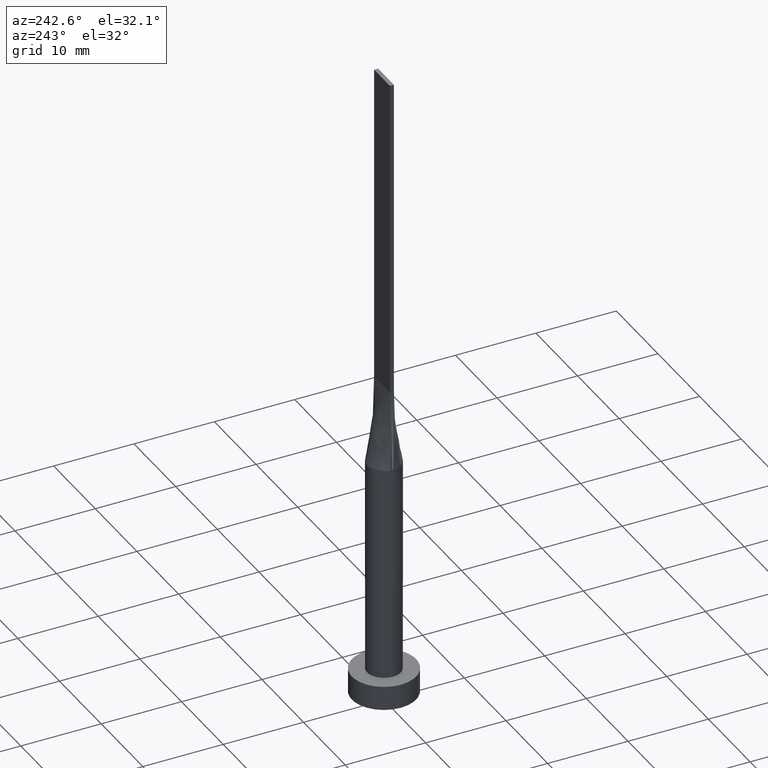
[diagram: clean part render]
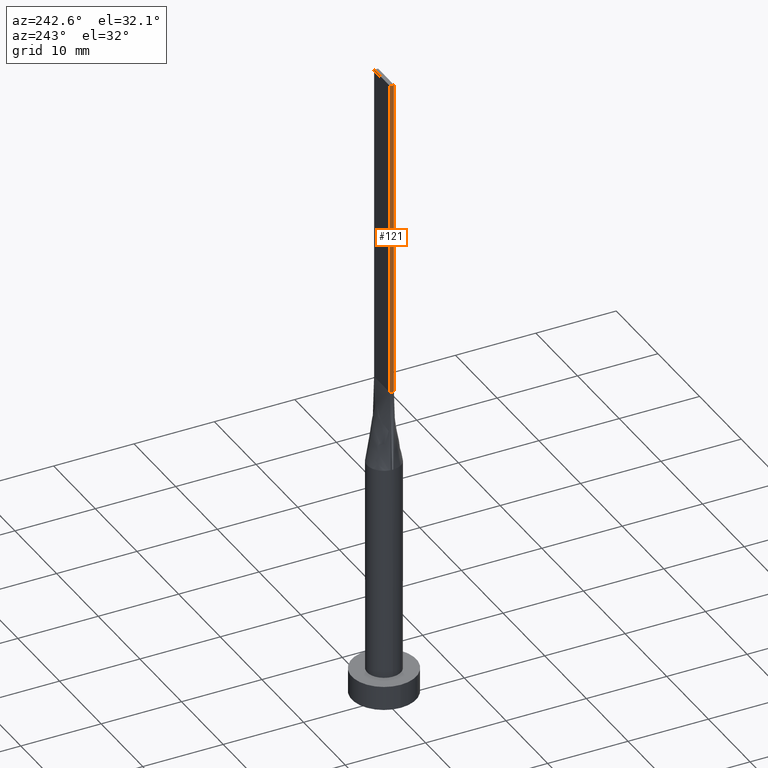
[diagram: same view with one face highlighted and labeled with its STEP entity id]
A machine part, auxiliary view. The second image highlights one B-rep face of the part: STEP entity #121.
In plain terms, the highlighted planar face has unit normal (1, 0, -0).
Its self-contained STEP definition (entity closure, byte-faithful):
#20 = ORIENTED_EDGE ( 'NONE', *, *, #541, .F. ) ;
#34 = LINE ( 'NONE', #492, #415 ) ;
#35 = EDGE_CURVE ( 'NONE', #504, #205, #220, .T. ) ;
#55 = VERTEX_POINT ( 'NONE', #391 ) ;
#77 = CARTESIAN_POINT ( 'NONE',  ( -1.899999999999999911, 0.2500000000000002220, 80.00000000000000000 ) ) ;
#85 = LINE ( 'NONE', #451, #376 ) ;
#103 = VECTOR ( 'NONE', #183, 1000.000000000000000 ) ;
#121 = ADVANCED_FACE ( 'NONE', ( #485 ), #389, .F. ) ;
#183 = DIRECTION ( 'NONE',  ( 0.000000000000000000, -1.000000000000000000, 0.000000000000000000 ) ) ;
#205 = VERTEX_POINT ( 'NONE', #297 ) ;
#220 = LINE ( 'NONE', #579, #103 ) ;
#224 = DIRECTION ( 'NONE',  ( -0.000000000000000000, -0.000000000000000000, -1.000000000000000000 ) ) ;
#256 = DIRECTION ( 'NONE',  ( -0.000000000000000000, -0.000000000000000000, -1.000000000000000000 ) ) ;
#269 = EDGE_LOOP ( 'NONE', ( #373, #20, #474, #359 ) ) ;
#270 = CARTESIAN_POINT ( 'NONE',  ( -1.899999999999999911, 0.2500000000000002220, 80.00000000000000000 ) ) ;
#297 = CARTESIAN_POINT ( 'NONE',  ( -1.899999999999999911, -0.2499999999999995837, 40.00000000000000000 ) ) ;
#320 = DIRECTION ( 'NONE',  ( 0.000000000000000000, -1.000000000000000000, 0.000000000000000000 ) ) ;
#322 = AXIS2_PLACEMENT_3D ( 'NONE', #77, #348, #523 ) ;
#348 = DIRECTION ( 'NONE',  ( 1.000000000000000000, 0.000000000000000000, -0.000000000000000000 ) ) ;
#359 = ORIENTED_EDGE ( 'NONE', *, *, #390, .T. ) ;
#373 = ORIENTED_EDGE ( 'NONE', *, *, #35, .T. ) ;
#376 = VECTOR ( 'NONE', #224, 1000.000000000000000 ) ;
#389 = PLANE ( 'NONE',  #322 ) ;
#390 = EDGE_CURVE ( 'NONE', #450, #504, #557, .T. ) ;
#391 = CARTESIAN_POINT ( 'NONE',  ( -1.899999999999999911, -0.2499999999999995837, 80.00000000000000000 ) ) ;
#415 = VECTOR ( 'NONE', #320, 1000.000000000000000 ) ;
#450 = VERTEX_POINT ( 'NONE', #270 ) ;
#451 = CARTESIAN_POINT ( 'NONE',  ( -1.899999999999999911, -0.2499999999999995837, 80.00000000000000000 ) ) ;
#460 = EDGE_CURVE ( 'NONE', #450, #55, #34, .T. ) ;
#474 = ORIENTED_EDGE ( 'NONE', *, *, #460, .F. ) ;
#485 = FACE_OUTER_BOUND ( 'NONE', #269, .T. ) ;
#490 = CARTESIAN_POINT ( 'NONE',  ( -1.899999999999999911, 0.2500000000000002220, 40.00000000000000000 ) ) ;
#492 = CARTESIAN_POINT ( 'NONE',  ( -1.899999999999999911, 0.2500000000000002220, 80.00000000000000000 ) ) ;
#504 = VERTEX_POINT ( 'NONE', #490 ) ;
#522 = CARTESIAN_POINT ( 'NONE',  ( -1.899999999999999911, 0.2500000000000002220, 80.00000000000000000 ) ) ;
#523 = DIRECTION ( 'NONE',  ( -0.000000000000000000, 0.000000000000000000, -1.000000000000000000 ) ) ;
#536 = VECTOR ( 'NONE', #256, 1000.000000000000000 ) ;
#541 = EDGE_CURVE ( 'NONE', #55, #205, #85, .T. ) ;
#557 = LINE ( 'NONE', #522, #536 ) ;
#579 = CARTESIAN_POINT ( 'NONE',  ( -1.899999999999999911, 0.2500000000000002220, 40.00000000000000000 ) ) ;